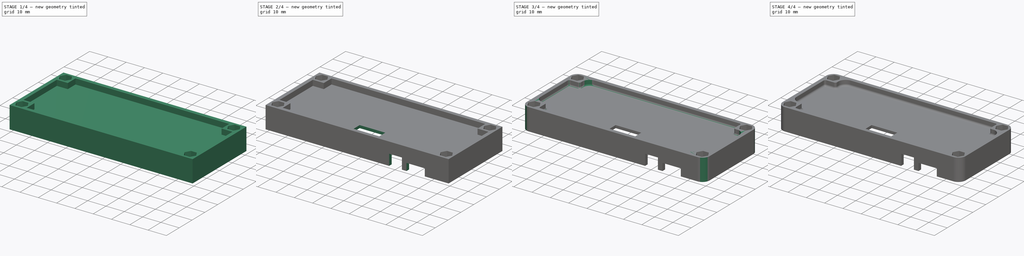
[diagram: build sequence overview — one tinted view per stage of 4, left to right]
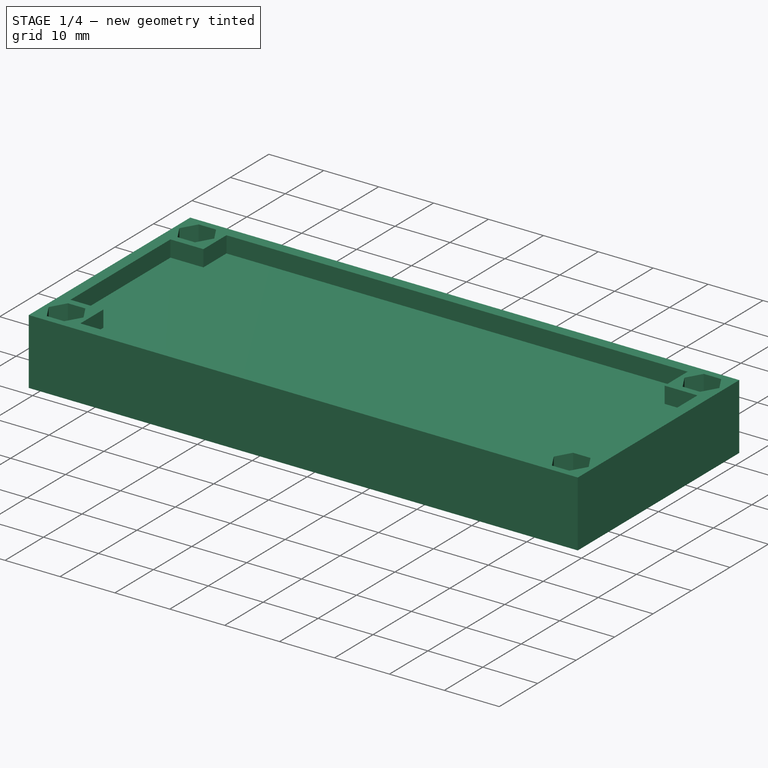
[diagram: stage 1 of 4 — iso view after this stage's code; geometry added in this stage tinted green]
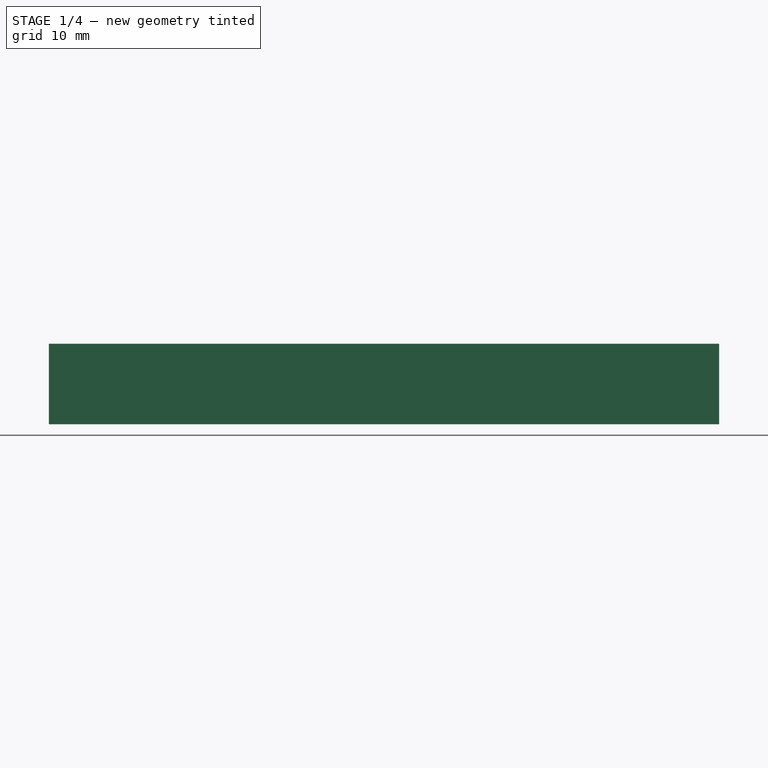
[diagram: stage 1 of 4 — front view after this stage's code; geometry added in this stage tinted green]
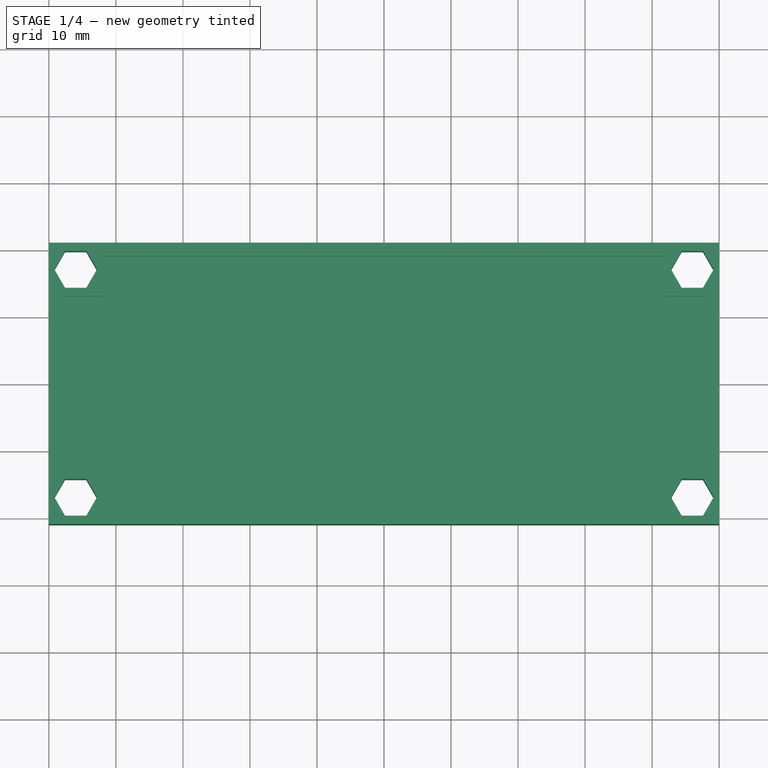
[diagram: stage 1 of 4 — top view after this stage's code; geometry added in this stage tinted green]
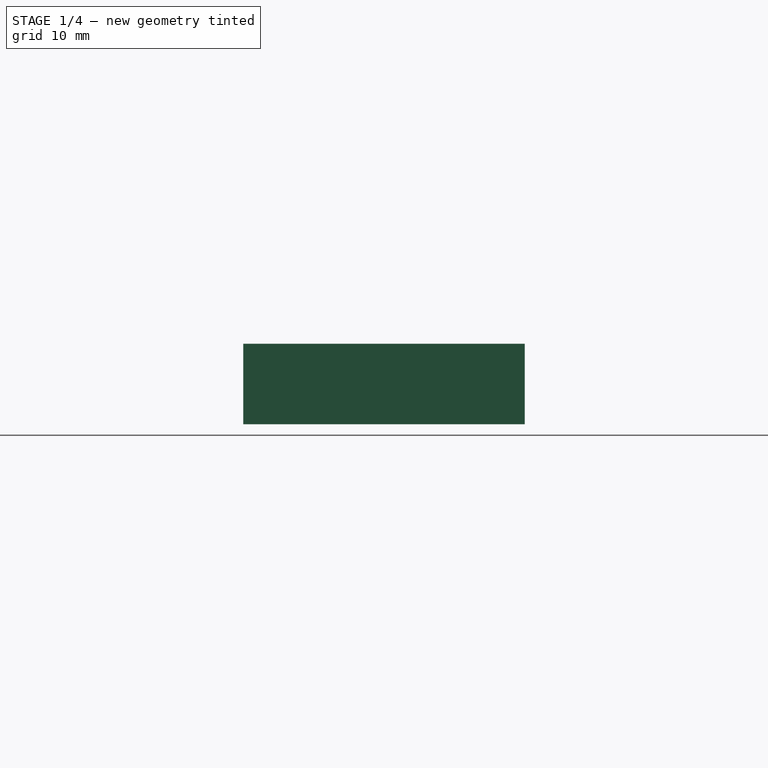
[diagram: stage 1 of 4 — right view after this stage's code; geometry added in this stage tinted green]
FCSTD DOCUMENT  (FreeCAD 0.14R3692 (Git))
Label: ncase_rev_a
License: All rights reserved
LicenseURL: http://en.wikipedia.org/wiki/All_rights_reserved
objects: PartDesign::Fillet×7, Sketcher::SketchObject×6, PartDesign::Pocket×5, PartDesign::Pad×1
note: 25 computed .brp shape members not serialized (recipe doc carries the construction recipe); baked Part::Feature solids carry a one-line shape summary decoded from their .brp

FEATURE [Sketcher::SketchObject] Sketch
  sketch-geometry (32):
    g0: LineSegment StartX=-50 StartY=21 StartZ=0 EndX=50 EndY=21 EndZ=0
    g1: LineSegment StartX=50 StartY=21 StartZ=0 EndX=50 EndY=-21 EndZ=0
    g2: LineSegment StartX=50 StartY=-21 StartZ=0 EndX=-50 EndY=-21 EndZ=0
    g3: LineSegment StartX=-50 StartY=-21 StartZ=0 EndX=-50 EndY=21 EndZ=0
    g4: LineSegment StartX=-44.4123 StartY=14.25 StartZ=0 EndX=-42.8246 EndY=17 EndZ=0
    g5: LineSegment StartX=-42.8246 StartY=17 StartZ=0 EndX=-44.4123 EndY=19.75 EndZ=0
    g6: LineSegment StartX=-44.4123 StartY=19.75 StartZ=0 EndX=-47.5877 EndY=19.75 EndZ=0
    g7: LineSegment StartX=-47.5877 StartY=19.75 StartZ=0 EndX=-49.1754 EndY=17 EndZ=0
    g8: LineSegment StartX=-49.1754 StartY=17 StartZ=0 EndX=-47.5877 EndY=14.25 EndZ=0
    g9: LineSegment StartX=-47.5877 StartY=14.25 StartZ=0 EndX=-44.4123 EndY=14.25 EndZ=0
    g10: Circle [constr] CenterX=-46 CenterY=17 CenterZ=0 NormalX=0 NormalY=0 NormalZ=1 Radius=3.17543
    g11: LineSegment StartX=-44.4123 StartY=-19.75 StartZ=0 EndX=-42.8246 EndY=-17 EndZ=0
    g12: LineSegment StartX=-42.8246 StartY=-17 StartZ=0 EndX=-44.4123 EndY=-14.25 EndZ=0
    g13: LineSegment StartX=-44.4123 StartY=-14.25 StartZ=0 EndX=-47.5877 EndY=-14.25 EndZ=0
    g14: LineSegment StartX=-47.5877 StartY=-14.25 StartZ=0 EndX=-49.1754 EndY=-17 EndZ=0
    g15: LineSegment StartX=-49.1754 StartY=-17 StartZ=0 EndX=-47.5877 EndY=-19.75 EndZ=0
    g16: LineSegment StartX=-47.5877 StartY=-19.75 StartZ=0 EndX=-44.4123 EndY=-19.75 EndZ=0
    g17: Circle [constr] CenterX=-46 CenterY=-17 CenterZ=0 NormalX=0 NormalY=0 NormalZ=1 Radius=3.17543
    g18: LineSegment StartX=49.1754 StartY=17 StartZ=0 EndX=47.5877 EndY=19.75 EndZ=0
    g19: LineSegment StartX=47.5877 StartY=19.75 StartZ=0 EndX=44.4123 EndY=19.75 EndZ=0
    g20: LineSegment StartX=44.4123 StartY=19.75 StartZ=0 EndX=42.8246 EndY=17 EndZ=0
    g21: LineSegment StartX=42.8246 StartY=17 StartZ=0 EndX=44.4123 EndY=14.25 EndZ=0
    g22: LineSegment StartX=44.4123 StartY=14.25 StartZ=0 EndX=47.5877 EndY=14.25 EndZ=0
    g23: LineSegment StartX=47.5877 StartY=14.25 StartZ=0 EndX=49.1754 EndY=17 EndZ=0
    g24: Circle [constr] CenterX=46 CenterY=17 CenterZ=0 NormalX=0 NormalY=0 NormalZ=1 Radius=3.17543
    g25: LineSegment StartX=47.5877 StartY=-19.75 StartZ=0 EndX=49.1754 EndY=-17 EndZ=0
    g26: LineSegment StartX=49.1754 StartY=-17 StartZ=0 EndX=47.5877 EndY=-14.25 EndZ=0
    g27: LineSegment StartX=47.5877 StartY=-14.25 StartZ=0 EndX=44.4123 EndY=-14.25 EndZ=0
    g28: LineSegment StartX=44.4123 StartY=-14.25 StartZ=0 EndX=42.8246 EndY=-17 EndZ=0
    g29: LineSegment StartX=42.8246 StartY=-17 StartZ=0 EndX=44.4123 EndY=-19.75 EndZ=0
    g30: LineSegment StartX=44.4123 StartY=-19.75 StartZ=0 EndX=47.5877 EndY=-19.75 EndZ=0
    g31: Circle [constr] CenterX=46 CenterY=-17 CenterZ=0 NormalX=0 NormalY=0 NormalZ=1 Radius=3.17543
  constraints (77):
    c: Coincident(g0,g1)
    c: Coincident(g1,g2)
    c: Coincident(g2,g3)
    c: Coincident(g3,g0)
    c: Horizontal(g0)
    c: Horizontal(g2)
    c: Vertical(g1)
    c: Vertical(g3)
    c: DistanceY(g3) = 42
    c: DistanceX(g0) = 100
    c: Symmetric(g0,g0,g-2)
    c: Symmetric(g0,g1,g-1)
    c: Coincident(g4,g5)
    c: Coincident(g5,g6)
    c: Coincident(g6,g7)
    c: Coincident(g7,g8)
    c: Coincident(g8,g9)
    c: Coincident(g9,g4)
    c: Equal(g4, g5-g9) x5
    c: PointOnObject(g4,g10)
    c: PointOnObject(g5,g10)
    c: PointOnObject(g6,g10)
    c: PointOnObject(g7,g10)
    c: PointOnObject(g8,g10)
    c: PointOnObject(g9,g10)
    c: DistanceY(g10,g0) = 4
    c: DistanceX(g10,g0) = -4
    c: Horizontal(g6)
    c: DistanceY(g5,g4) = -5.5
    c: Coincident(g11,g12)
    c: Coincident(g12,g13)
    c: Coincident(g13,g14)
    c: Coincident(g14,g15)
    c: Coincident(g15,g16)
    c: Coincident(g16,g11)
    c: Equal(g11, g12-g16) x5
    c: PointOnObject(g11,g17)
    c: PointOnObject(g12,g17)
    c: PointOnObject(g13,g17)
    c: PointOnObject(g14,g17)
    c: PointOnObject(g15,g17)
    c: PointOnObject(g16,g17)
    c: Symmetric(g17,g10,g-1)
    c: Horizontal(g13)
    c: DistanceY(g12,g11) = -5.5
    c: Coincident(g18,g19)
    c: Coincident(g19,g20)
    c: Coincident(g20,g21)
    c: Coincident(g21,g22)
    c: Coincident(g22,g23)
    c: Coincident(g23,g18)
    c: Equal(g18, g19-g23) x5
    c: PointOnObject(g18,g24)
    c: PointOnObject(g19,g24)
    c: PointOnObject(g20,g24)
    c: PointOnObject(g21,g24)
    c: PointOnObject(g22,g24)
    c: PointOnObject(g23,g24)
    c: Coincident(g25,g26)
    c: Coincident(g26,g27)
    c: Coincident(g27,g28)
    c: Coincident(g28,g29)
    c: Coincident(g29,g30)
    c: Coincident(g30,g25)
    c: Equal(g25, g26-g30) x5
    c: PointOnObject(g25,g31)
    c: PointOnObject(g26,g31)
    c: PointOnObject(g27,g31)
    c: PointOnObject(g28,g31)
    c: PointOnObject(g29,g31)
    c: PointOnObject(g30,g31)
    c: Symmetric(g24,g10,g-2)
    c: Symmetric(g31,g24,g-1)
    c: Horizontal(g27)
    c: Horizontal(g19)
    c: DistanceY(g19,g21) = -5.5
    c: DistanceY(g27,g29) = -5.5
FEATURE [PartDesign::Pad] Pad
  Length = 12
  Length2 = 100
  Sketch = -> Sketch
  Type = 0
FEATURE [Sketcher::SketchObject] Sketch001
  Placement = pos=(0,0,12) rot=(0,0,1;0rad)
  Support = -> Pad [Face30]
  sketch-geometry (12):
    g0: LineSegment StartX=-48 StartY=13 StartZ=0 EndX=-48 EndY=-13 EndZ=0
    g1: LineSegment StartX=-48 StartY=-13 StartZ=0 EndX=-42 EndY=-13 EndZ=0
    g2: LineSegment StartX=-42 StartY=-13 StartZ=0 EndX=-42 EndY=-19 EndZ=0
    g3: LineSegment StartX=-42 StartY=-19 StartZ=0 EndX=42 EndY=-19 EndZ=0
    g4: LineSegment StartX=42 StartY=-19 StartZ=0 EndX=42 EndY=-13 EndZ=0
    g5: LineSegment StartX=42 StartY=-13 StartZ=0 EndX=48 EndY=-13 EndZ=0
    g6: LineSegment StartX=48 StartY=-13 StartZ=0 EndX=48 EndY=13 EndZ=0
    g7: LineSegment StartX=48 StartY=13 StartZ=0 EndX=42 EndY=13 EndZ=0
    g8: LineSegment StartX=42 StartY=13 StartZ=0 EndX=42 EndY=19 EndZ=0
    g9: LineSegment StartX=42 StartY=19 StartZ=0 EndX=-42 EndY=19 EndZ=0
    g10: LineSegment StartX=-42 StartY=19 StartZ=0 EndX=-42 EndY=13 EndZ=0
    g11: LineSegment StartX=-42 StartY=13 StartZ=0 EndX=-48 EndY=13 EndZ=0
  constraints (33):
    c: Vertical(g0)
    c: Coincident(g0,g1)
    c: Horizontal(g1)
    c: Coincident(g1,g2)
    c: Vertical(g2)
    c: Coincident(g2,g3)
    c: Horizontal(g3)
    c: Coincident(g3,g4)
    c: Vertical(g4)
    c: Coincident(g4,g5)
    c: Horizontal(g5)
    c: Coincident(g5,g6)
    c: Vertical(g6)
    c: Coincident(g6,g7)
    c: Horizontal(g7)
    c: Coincident(g7,g8)
    c: Vertical(g8)
    c: Coincident(g8,g9)
    c: Horizontal(g9)
    c: Coincident(g9,g10)
    c: Vertical(g10)
    c: Coincident(g10,g11)
    c: Coincident(g11,g0)
    c: Horizontal(g11)
    c: Symmetric(g10,g7,g-2)
    c: Symmetric(g7,g4,g-1)
    c: Symmetric(g10,g1,g-1)
    c: DistanceY(g8,g3) = -38
    c: DistanceX(g6,g0) = -96
    c: DistanceX(g9) = -84
    c: DistanceY(g6) = 26
    c: Symmetric(g8,g3,g-1)
    c: Symmetric(g6,g0,g-2)
FEATURE [PartDesign::Pocket] Pocket
  Length = 3
  Sketch = -> Sketch001
  Type = 0
FEATURE [Sketcher::SketchObject] Sketch003
  Placement = pos=(0,0,0) rot=(1,0,0;3.14159rad)
  Support = -> Pocket [Face4]
  sketch-geometry (12):
    g0: LineSegment StartX=-48 StartY=13 StartZ=0 EndX=-48 EndY=-13 EndZ=0
    g1: LineSegment StartX=-48 StartY=-13 StartZ=0 EndX=-42 EndY=-13 EndZ=0
    g2: LineSegment StartX=-42 StartY=-13 StartZ=0 EndX=-42 EndY=-19 EndZ=0
    g3: LineSegment StartX=-42 StartY=-19 StartZ=0 EndX=42 EndY=-19 EndZ=0
    g4: LineSegment StartX=42 StartY=-19 StartZ=0 EndX=42 EndY=-13 EndZ=0
    g5: LineSegment StartX=42 StartY=-13 StartZ=0 EndX=48 EndY=-13 EndZ=0
    g6: LineSegment StartX=48 StartY=-13 StartZ=0 EndX=48 EndY=13 EndZ=0
    g7: LineSegment StartX=48 StartY=13 StartZ=0 EndX=42 EndY=13 EndZ=0
    g8: LineSegment StartX=42 StartY=13 StartZ=0 EndX=42 EndY=19 EndZ=0
    g9: LineSegment StartX=42 StartY=19 StartZ=0 EndX=-42 EndY=19 EndZ=0
    g10: LineSegment StartX=-42 StartY=19 StartZ=0 EndX=-42 EndY=13 EndZ=0
    g11: LineSegment StartX=-42 StartY=13 StartZ=0 EndX=-48 EndY=13 EndZ=0
  constraints (33):
    c: Vertical(g0)
    c: Coincident(g0,g1)
    c: Horizontal(g1)
    c: Coincident(g1,g2)
    c: Vertical(g2)
    c: Coincident(g2,g3)
    c: Horizontal(g3)
    c: Coincident(g3,g4)
    c: Vertical(g4)
    c: Coincident(g4,g5)
    c: Horizontal(g5)
    c: Coincident(g5,g6)
    c: Vertical(g6)
    c: Coincident(g6,g7)
    c: Horizontal(g7)
    c: Coincident(g7,g8)
    c: Vertical(g8)
    c: Coincident(g8,g9)
    c: Horizontal(g9)
    c: Coincident(g9,g10)
    c: Vertical(g10)
    c: Coincident(g10,g11)
    c: Coincident(g11,g0)
    c: Horizontal(g11)
    c: Symmetric(g10,g7,g-2)
    c: Symmetric(g7,g4,g-1)
    c: Symmetric(g10,g1,g-1)
    c: DistanceY(g8,g3) = -38
    c: DistanceX(g6,g0) = -96
    c: DistanceX(g9) = -84
    c: DistanceY(g6) = 26
    c: Symmetric(g8,g3,g-1)
    c: Symmetric(g6,g0,g-2)
FEATURE [PartDesign::Pocket] Pocket001
  Length = 7.5
  Sketch = -> Sketch003
  Type = 0
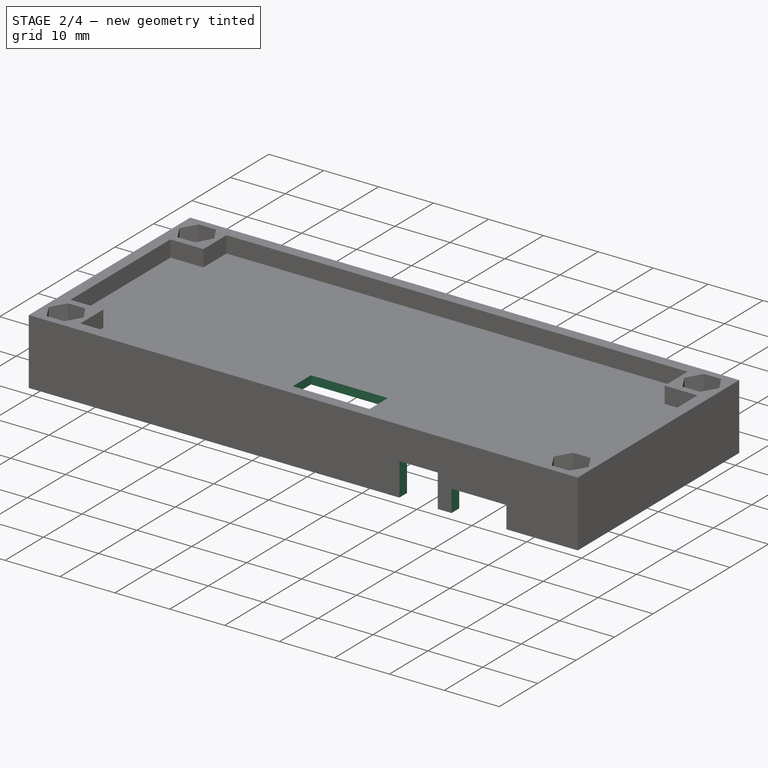
[diagram: stage 2 of 4 — iso view after this stage's code; geometry added in this stage tinted green]
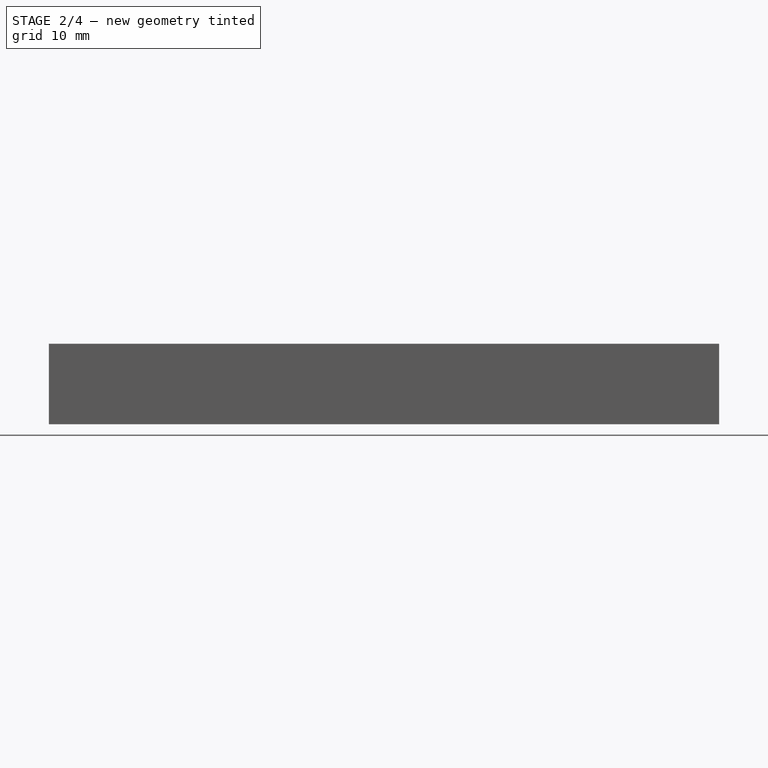
[diagram: stage 2 of 4 — front view after this stage's code; geometry added in this stage tinted green]
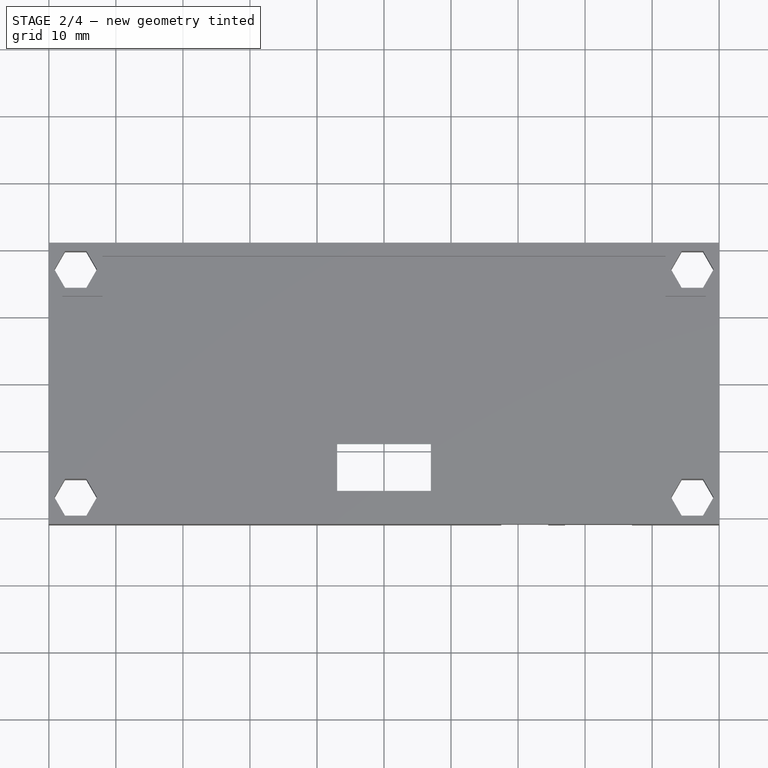
[diagram: stage 2 of 4 — top view after this stage's code; geometry added in this stage tinted green]
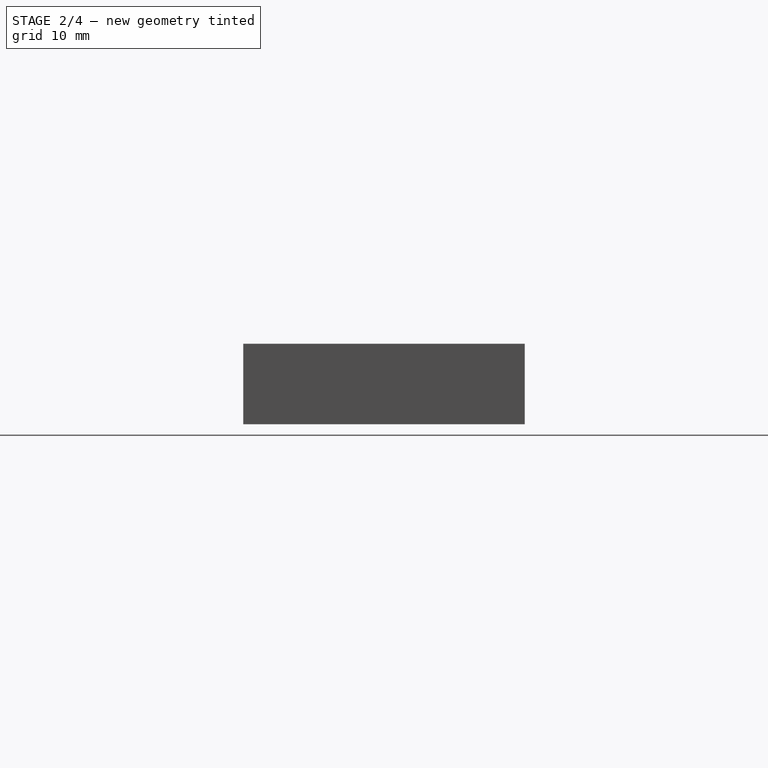
[diagram: stage 2 of 4 — right view after this stage's code; geometry added in this stage tinted green]
FEATURE [Sketcher::SketchObject] Sketch002
  Placement = pos=(0,0,9) rot=(0,0,1;0rad)
  Support = -> Pocket001 [Face56]
  sketch-geometry (4):
    g0: LineSegment StartX=-7 StartY=-9 StartZ=0 EndX=7 EndY=-9 EndZ=0
    g1: LineSegment StartX=7 StartY=-9 StartZ=0 EndX=7 EndY=-16 EndZ=0
    g2: LineSegment StartX=7 StartY=-16 StartZ=0 EndX=-7 EndY=-16 EndZ=0
    g3: LineSegment StartX=-7 StartY=-16 StartZ=0 EndX=-7 EndY=-9 EndZ=0
  constraints (12):
    c: Coincident(g0,g1)
    c: Coincident(g1,g2)
    c: Coincident(g2,g3)
    c: Coincident(g3,g0)
    c: Horizontal(g0)
    c: Horizontal(g2)
    c: Vertical(g1)
    c: Vertical(g3)
    c: Symmetric(g0,g0,g-2)
    c: DistanceY(g1) = -7
    c: DistanceX(g0) = 14
    c: DistanceY(g-1,g0) = -9
FEATURE [PartDesign::Pocket] Pocket002
  Length = 5
  Sketch = -> Sketch002
  Type = 0
FEATURE [Sketcher::SketchObject] Sketch004
  Placement = pos=(0,-21,0) rot=(1,0,0;1.5708rad)
  Support = -> Pocket002 [Face6]
  sketch-geometry (4):
    g0: LineSegment StartX=17.5 StartY=6 StartZ=0 EndX=24.5 EndY=6 EndZ=0
    g1: LineSegment StartX=24.5 StartY=6 StartZ=0 EndX=24.5 EndY=0 EndZ=0
    g2: LineSegment StartX=24.5 StartY=0 StartZ=0 EndX=17.5 EndY=0 EndZ=0
    g3: LineSegment StartX=17.5 StartY=0 StartZ=0 EndX=17.5 EndY=6 EndZ=0
  constraints (12):
    c: Coincident(g0,g1)
    c: Coincident(g1,g2)
    c: Coincident(g2,g3)
    c: Coincident(g3,g0)
    c: Horizontal(g0)
    c: Horizontal(g2)
    c: Vertical(g1)
    c: Vertical(g3)
    c: PointOnObject(g2,g-1)
    c: DistanceX(g0) = 7
    c: DistanceY(g1) = -6
    c: DistanceX(g-1,g2) = 17.5
FEATURE [PartDesign::Pocket] Pocket003
  Length = 5
  Sketch = -> Sketch004
  Type = 0
FEATURE [Sketcher::SketchObject] Sketch005
  Placement = pos=(0,-21,0) rot=(1,0,0;1.5708rad)
  Support = -> Pocket003 [Face6]
  sketch-geometry (4):
    g0: LineSegment StartX=27 StartY=4 StartZ=0 EndX=37 EndY=4 EndZ=0
    g1: LineSegment StartX=37 StartY=4 StartZ=0 EndX=37 EndY=0 EndZ=0
    g2: LineSegment StartX=37 StartY=0 StartZ=0 EndX=27 EndY=0 EndZ=0
    g3: LineSegment StartX=27 StartY=0 StartZ=0 EndX=27 EndY=4 EndZ=0
  constraints (12):
    c: Coincident(g0,g1)
    c: Coincident(g1,g2)
    c: Coincident(g2,g3)
    c: Coincident(g3,g0)
    c: Horizontal(g0)
    c: Horizontal(g2)
    c: Vertical(g1)
    c: Vertical(g3)
    c: PointOnObject(g2,g-1)
    c: DistanceX(g0) = 10
    c: DistanceY(g1) = -4
    c: DistanceX(g-1,g2) = 27
FEATURE [PartDesign::Pocket] Pocket004
  Length = 5
  Sketch = -> Sketch005
  Type = 0
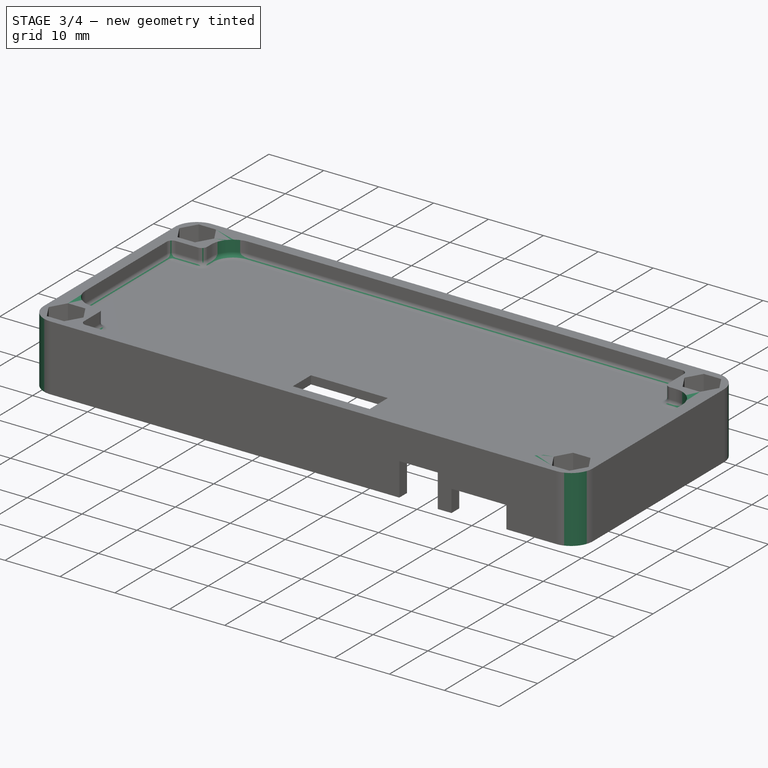
[diagram: stage 3 of 4 — iso view after this stage's code; geometry added in this stage tinted green]
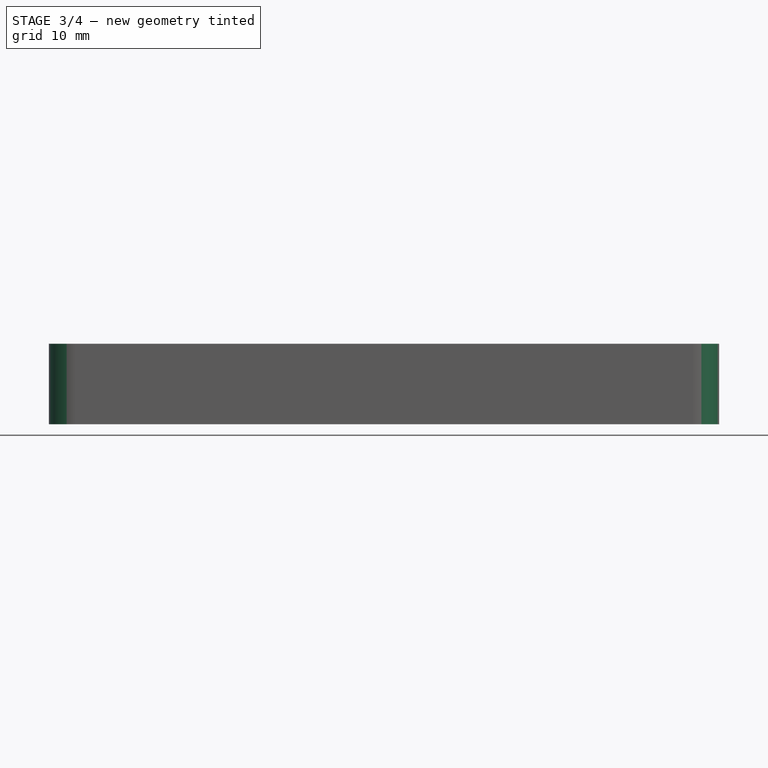
[diagram: stage 3 of 4 — front view after this stage's code; geometry added in this stage tinted green]
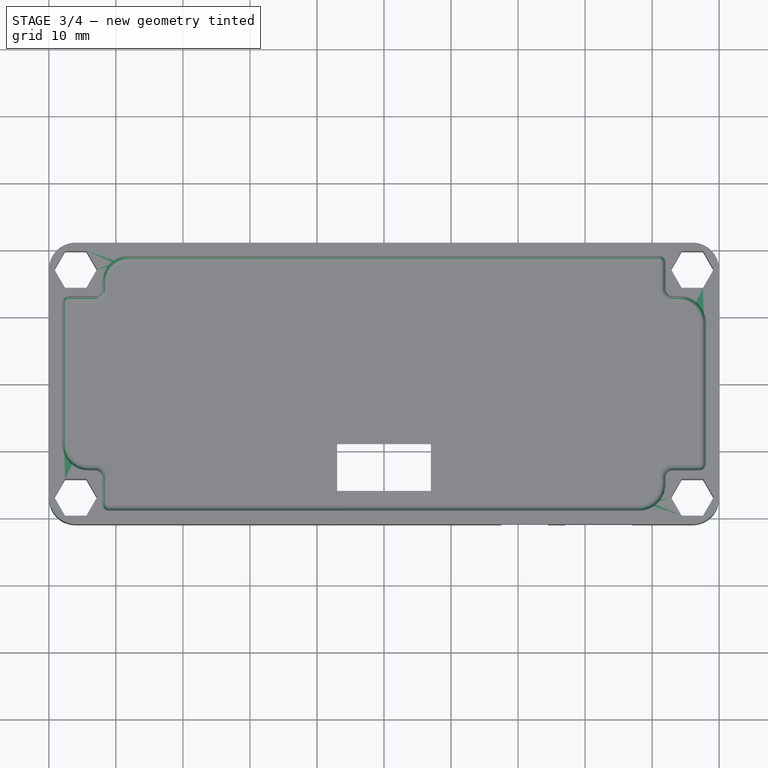
[diagram: stage 3 of 4 — top view after this stage's code; geometry added in this stage tinted green]
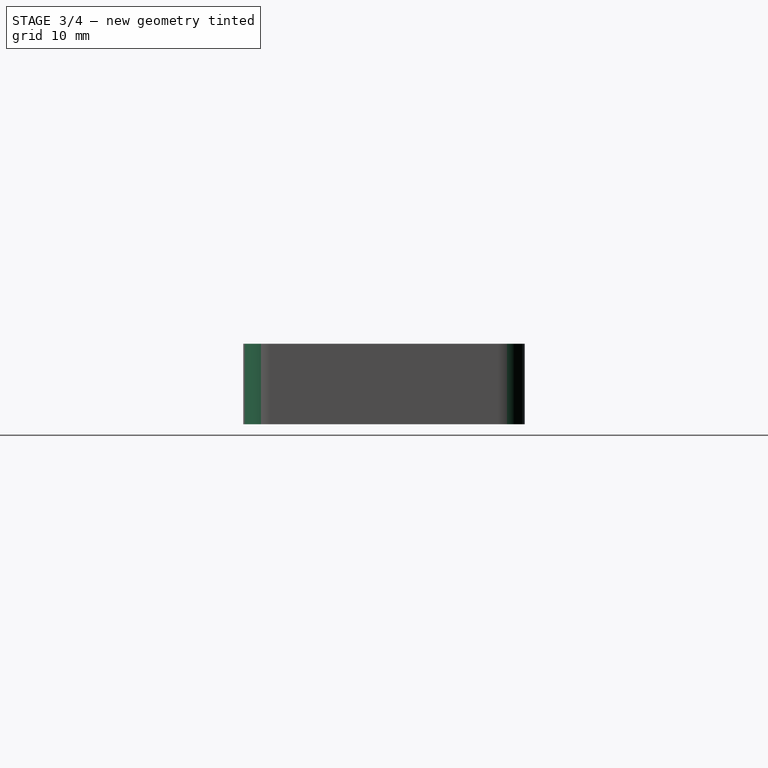
[diagram: stage 3 of 4 — right view after this stage's code; geometry added in this stage tinted green]
FEATURE [PartDesign::Fillet] Fillet
  Base = -> Pocket004 [Edge8,Edge2,Edge5,Edge1]
  Radius = 4
FEATURE [PartDesign::Fillet] Fillet001
  Base = -> Fillet [Edge175,Edge169,Edge187,Edge181]
  Radius = 4
FEATURE [PartDesign::Fillet] Fillet002
  Base = -> Fillet001 [Edge61,Edge72,Edge56,Edge50,Edge54,Edge66,Edge70,Edge77]
  Radius = 1
FEATURE [PartDesign::Fillet] Fillet003
  Base = -> Fillet002 [Edge75,Edge79,Edge83,Edge87,Edge91,Edge95,Edge99,Edge103,Edge104,Edge101,Edge97,Edge93,Edge89,Edge85,Edge81,Edge77,Edge69,Edge65,Edge73,Edge61,Edge59,Edge63,Edge67,Edge71]
  Radius = 1
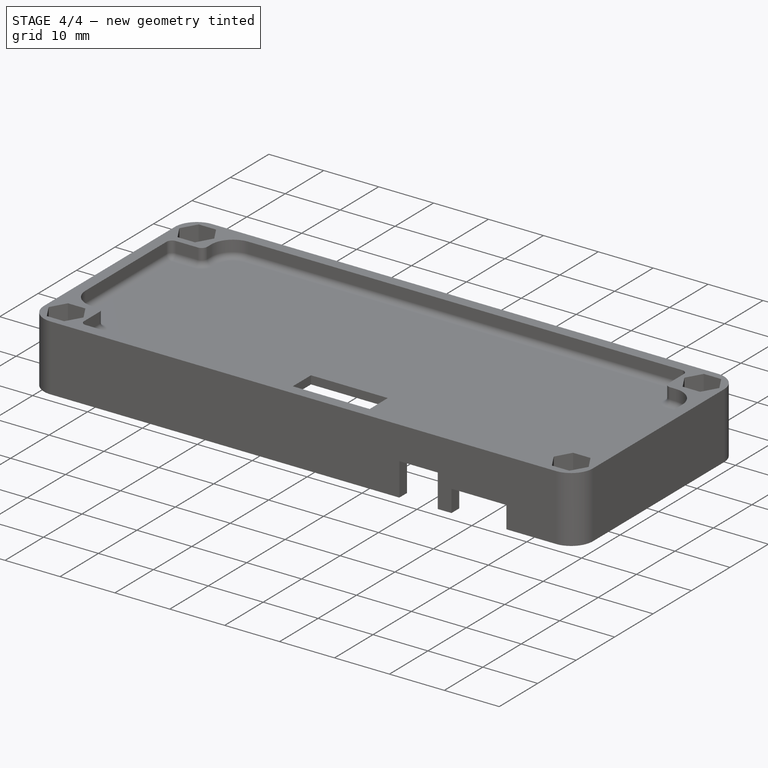
[diagram: stage 4 of 4 — iso view after this stage's code; geometry added in this stage tinted green]
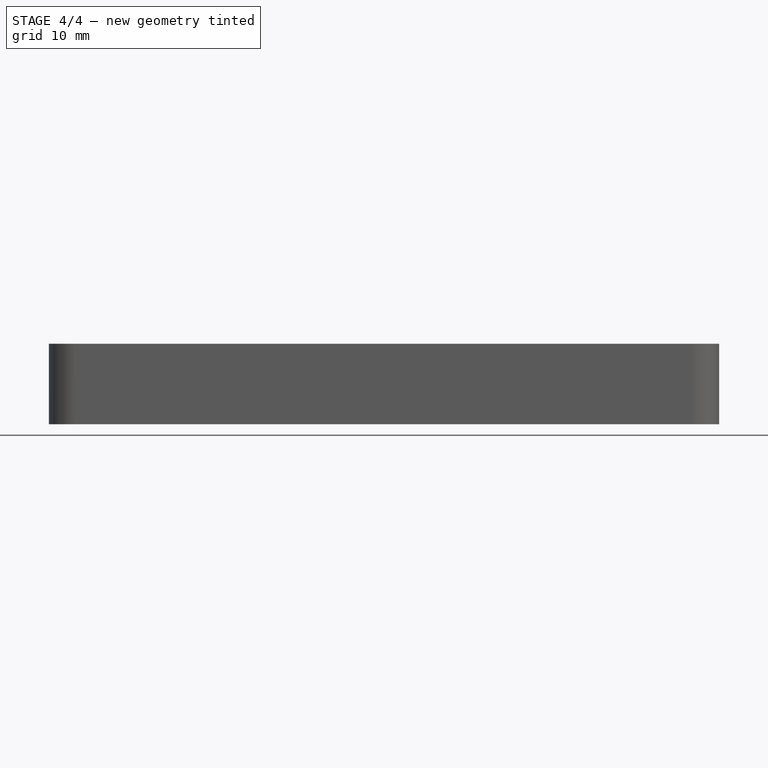
[diagram: stage 4 of 4 — front view after this stage's code; geometry added in this stage tinted green]
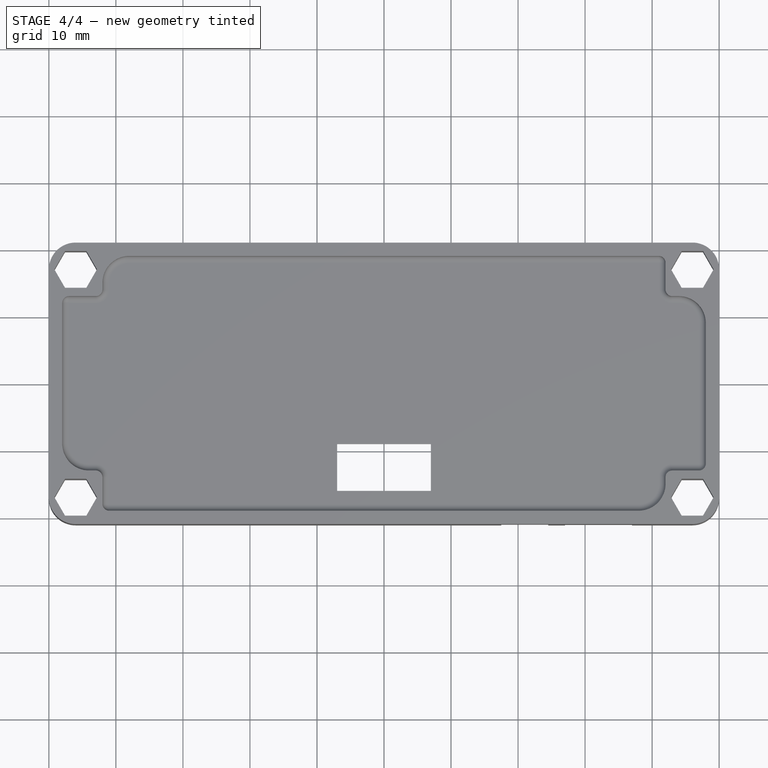
[diagram: stage 4 of 4 — top view after this stage's code; geometry added in this stage tinted green]
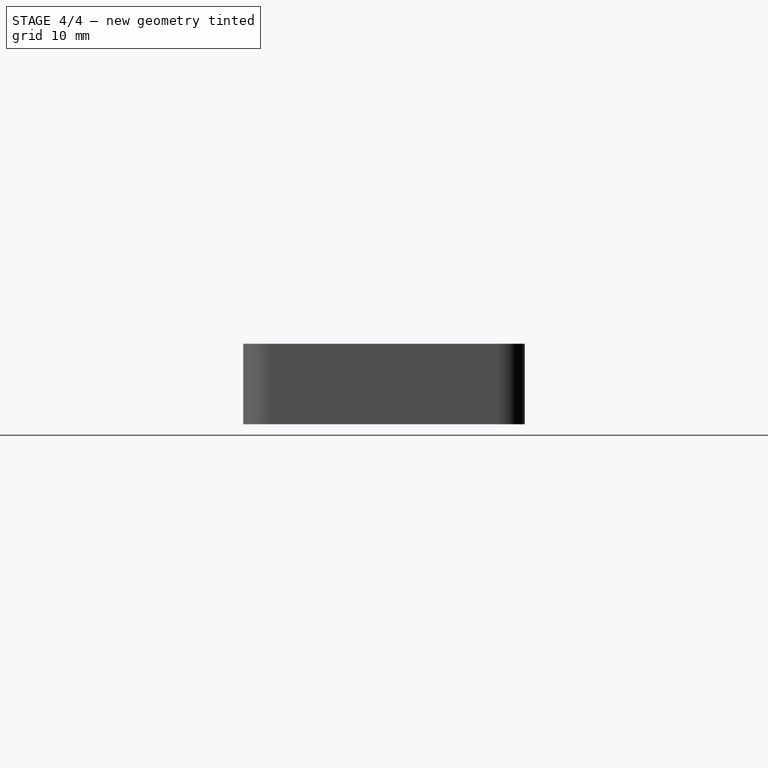
[diagram: stage 4 of 4 — right view after this stage's code; geometry added in this stage tinted green]
FEATURE [PartDesign::Fillet] Fillet004
  Base = -> Fillet003 [Edge285,Edge279,Edge286,Edge280]
  Radius = 4
FEATURE [PartDesign::Fillet] Fillet005
  Base = -> Fillet004 [Edge66,Edge110,Edge106,Edge95,Edge90,Edge72,Edge54,Edge67]
  Radius = 1
FEATURE [PartDesign::Fillet] Fillet006
  Base = -> Fillet005 [Edge70,Edge65,Edge63,Edge67,Edge78,Edge82,Edge93,Edge129,Edge133,Edge137,Edge140,Edge139,Edge135,Edge131,Edge127,Edge125,Edge122,Edge120,Edge117,Edge97,Edge101,Edge105,Edge109,Edge113]
  Radius = 1
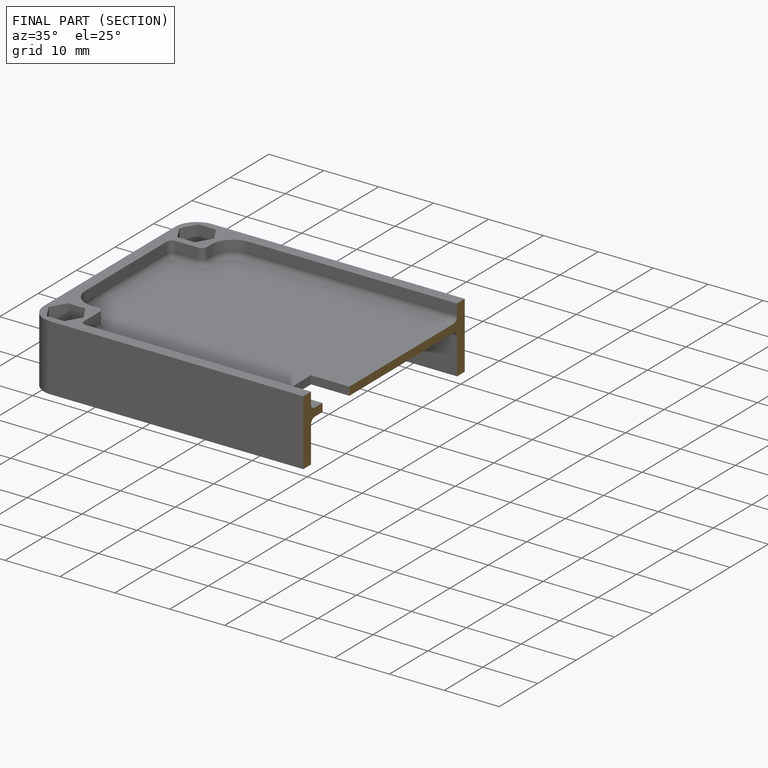
[diagram: finished part — half-section view (interior)]
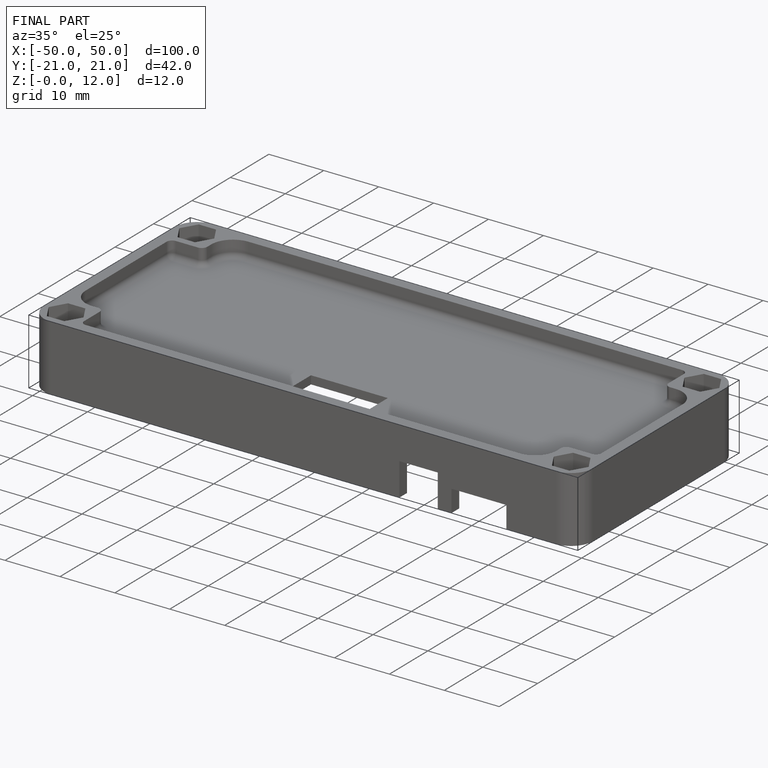
[diagram: finished part — iso view with bounding-box wireframe]
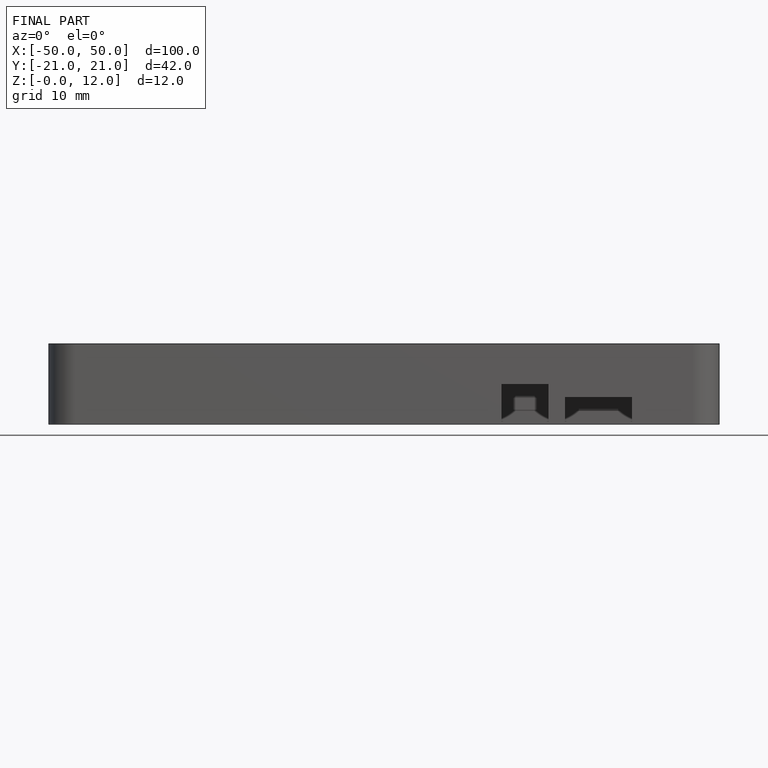
[diagram: finished part — front view with bounding-box wireframe]
